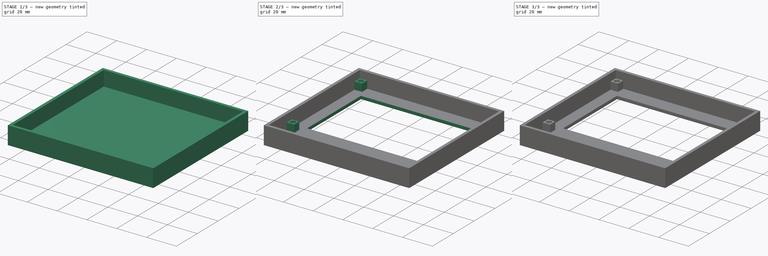
[diagram: build sequence overview — one tinted view per stage of 3, left to right]
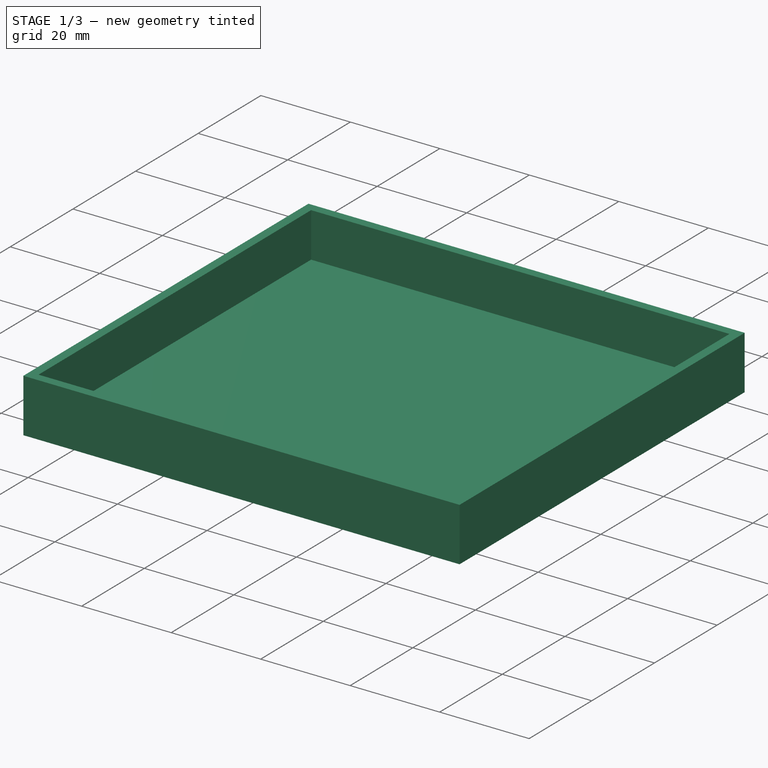
[diagram: stage 1 of 3 — iso view after this stage's code; geometry added in this stage tinted green]
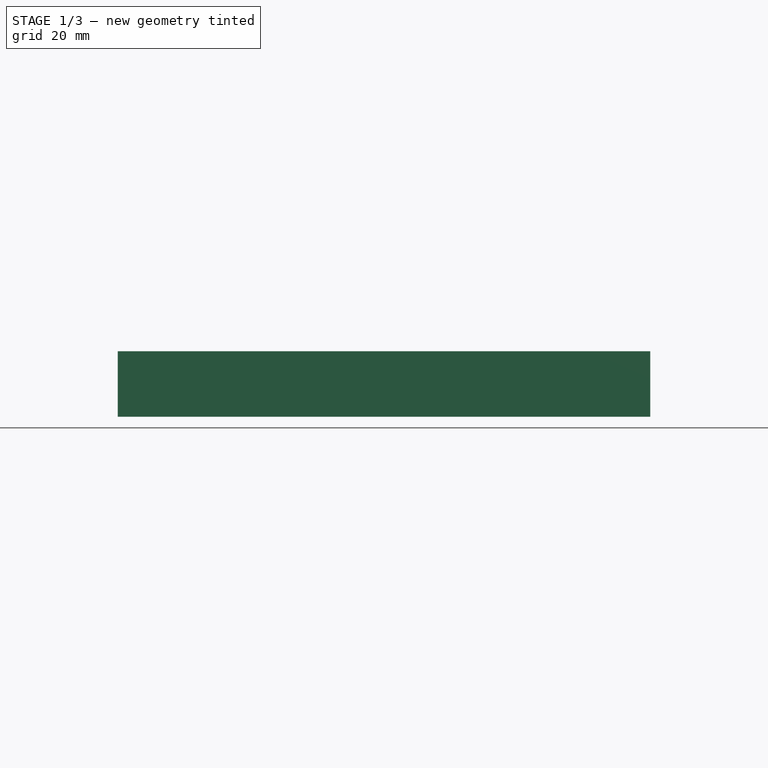
[diagram: stage 1 of 3 — front view after this stage's code; geometry added in this stage tinted green]
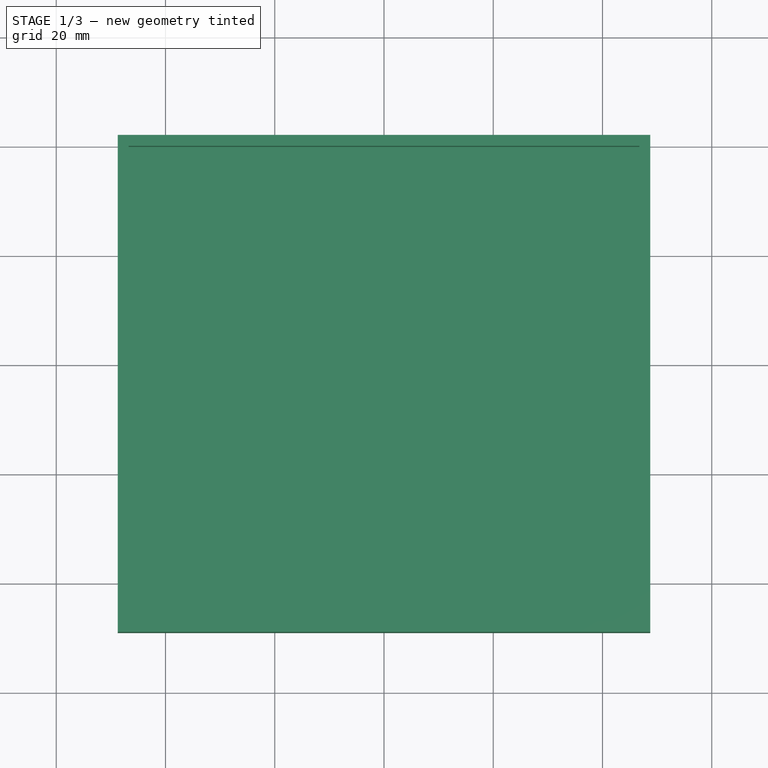
[diagram: stage 1 of 3 — top view after this stage's code; geometry added in this stage tinted green]
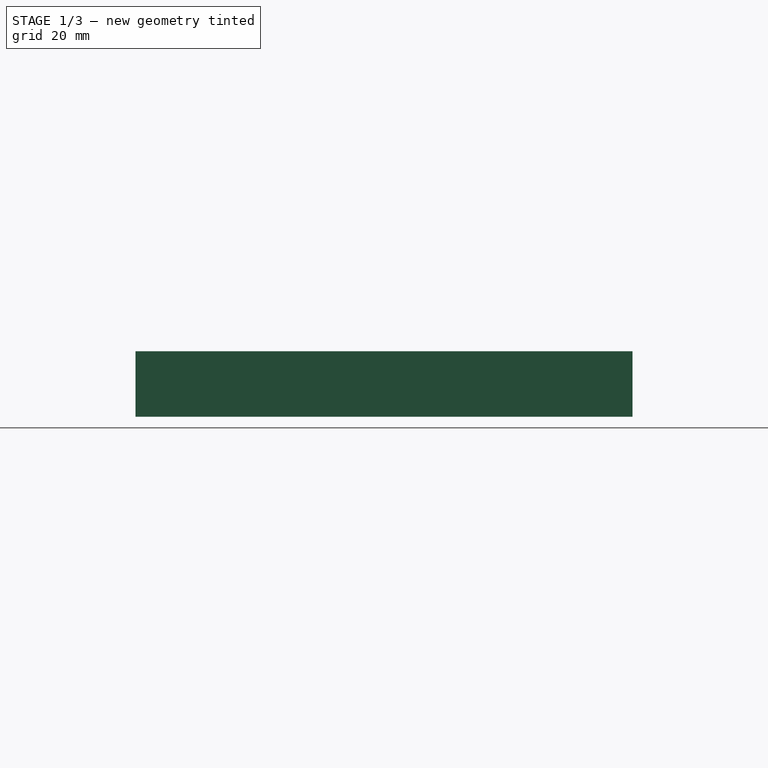
[diagram: stage 1 of 3 — right view after this stage's code; geometry added in this stage tinted green]
FCSTD DOCUMENT  (FreeCAD 0.18R14090 (Git))
Label: RRD_FGSC_Case2
License: All rights reserved
LicenseURL: http://en.wikipedia.org/wiki/All_rights_reserved
objects: Sketcher::SketchObject×6, PartDesign::Pocket×5, PartDesign::Pad×2, PartDesign::Body×1, App::Part×1
note: 21 computed .brp shape members not serialized (recipe doc carries the construction recipe); baked Part::Feature solids carry a one-line shape summary decoded from their .brp

FEATURE [Sketcher::SketchObject] Sketch  label="CaseInternalSketch"
  MapMode = 5
  Support = -> [XY_Plane001]
  sketch-geometry (4):
    g0: LineSegment StartX=-46.75 StartY=0 StartZ=0 EndX=46.75 EndY=0 EndZ=0
    g1: LineSegment StartX=-46.75 StartY=0 StartZ=0 EndX=-46.75 EndY=-87 EndZ=0
    g2: LineSegment StartX=46.75 StartY=0 StartZ=0 EndX=46.75 EndY=-87 EndZ=0
    g3: LineSegment StartX=-46.75 StartY=-87 StartZ=0 EndX=46.75 EndY=-87 EndZ=0
  constraints (11):
    c: PointOnObject(g0,g-1)
    c: Symmetric(g0,g0,g-2)
    c: Distance(g0) = 93.5
    c: Coincident(g1,g0)
    c: Vertical(g1)
    c: Coincident(g2,g0)
    c: Vertical(g2)
    c: Coincident(g3,g1)
    c: Coincident(g3,g2)
    c: Horizontal(g3)
    c: Distance(g2) = 87
FEATURE [Sketcher::SketchObject] Sketch001  label="CaseExternalSketch"
  MapMode = 5
  Support = -> [XY_Plane001]
  sketch-geometry (4):
    g0: LineSegment StartX=-48.75 StartY=2 StartZ=0 EndX=48.75 EndY=2 EndZ=0
    g1: LineSegment StartX=-48.75 StartY=2 StartZ=0 EndX=-48.75 EndY=-89 EndZ=0
    g2: LineSegment StartX=-48.75 StartY=-89 StartZ=0 EndX=48.75 EndY=-89 EndZ=0
    g3: LineSegment StartX=48.75 StartY=-89 StartZ=0 EndX=48.75 EndY=2 EndZ=0
  constraints (11):
    c: Symmetric(g0,g0,g-2)
    c: Distance(g0) = 97.5
    c: DistanceY(g-1,g0) = 2
    c: Coincident(g1,g0)
    c: Vertical(g1)
    c: Coincident(g2,g1)
    c: Horizontal(g2)
    c: Coincident(g3,g2)
    c: Coincident(g3,g0)
    c: Vertical(g3)
    c: Distance(g3) = 91
FEATURE [PartDesign::Pad] Pad  label="CaseExternalPad"
  Length = 12
  Length2 = 100
  Profile = -> Sketch001
  Reversed = true
  Type = 0
FEATURE [PartDesign::Pocket] Pocket  label="CaseInternalPocket"
  BaseFeature = -> Pad
  Length = 10
  Length2 = 100
  Profile = -> Sketch
  Type = 0
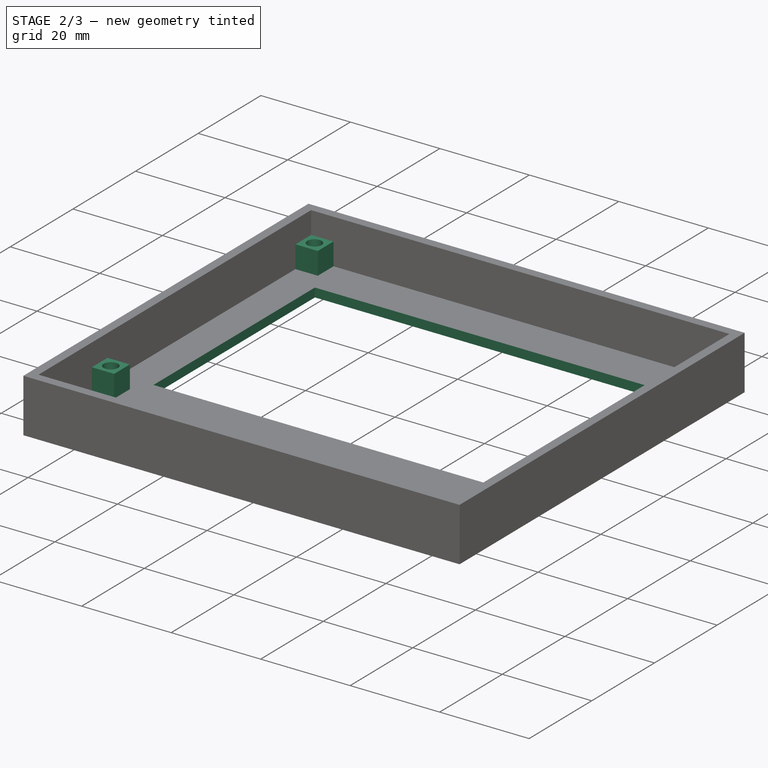
[diagram: stage 2 of 3 — iso view after this stage's code; geometry added in this stage tinted green]
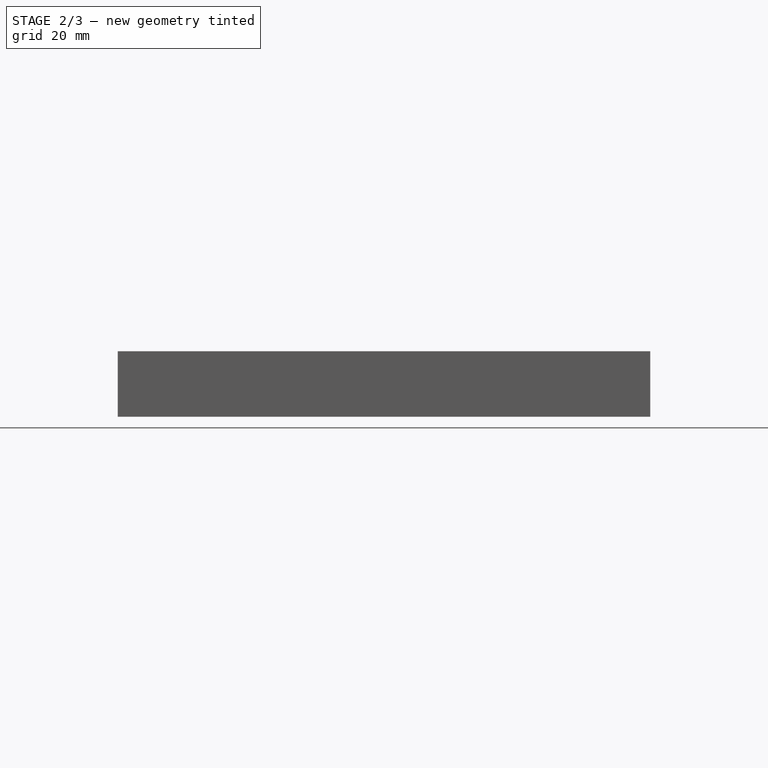
[diagram: stage 2 of 3 — front view after this stage's code; geometry added in this stage tinted green]
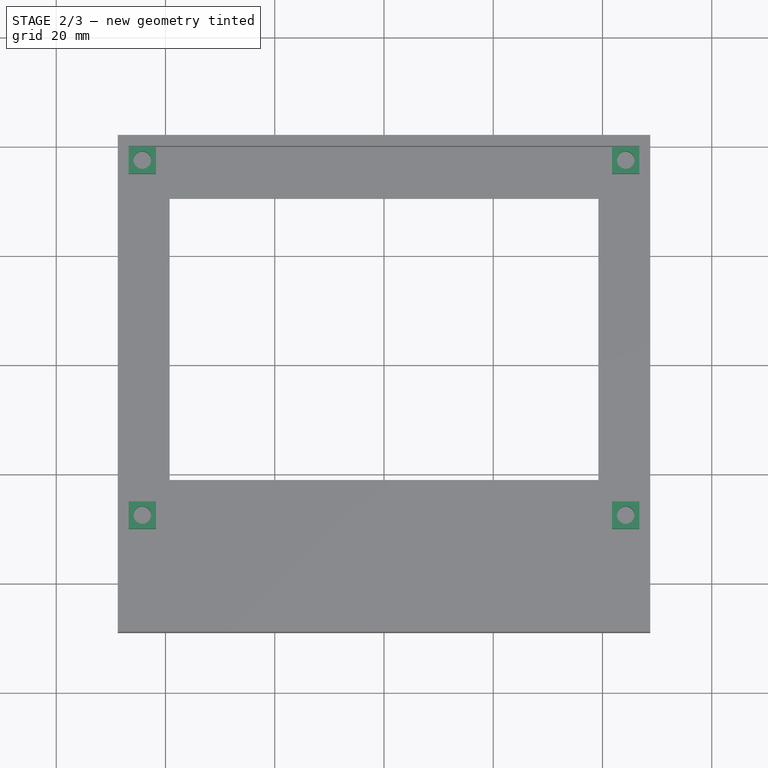
[diagram: stage 2 of 3 — top view after this stage's code; geometry added in this stage tinted green]
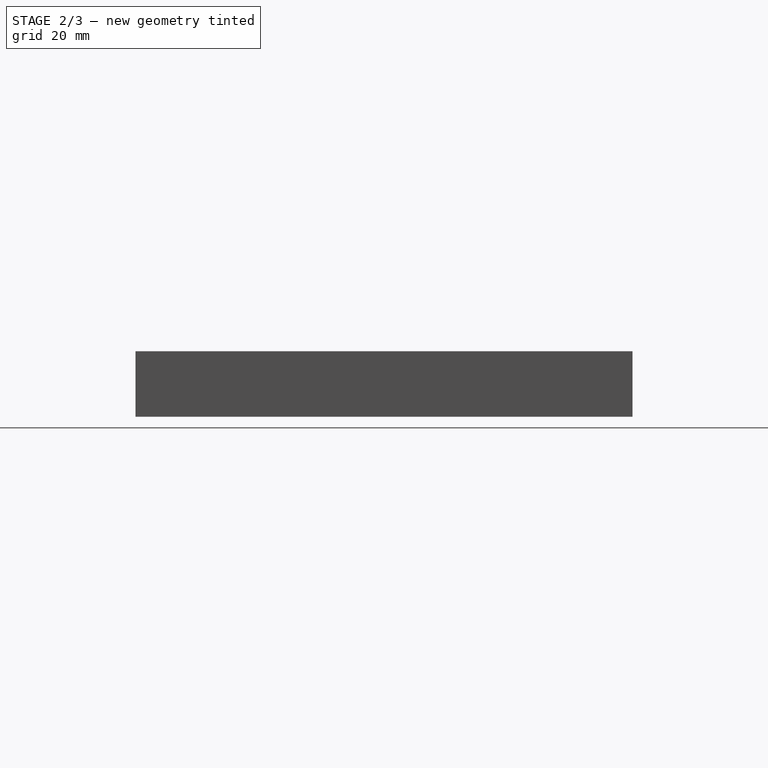
[diagram: stage 2 of 3 — right view after this stage's code; geometry added in this stage tinted green]
FEATURE [Sketcher::SketchObject] Sketch002  label="CaseScrewsSketch"
  ExternalGeometry = -> [Sketch]
  MapMode = 5
  Support = -> [XY_Plane001]
  sketch-geometry (27):
    g0: Circle CenterX=-44.25 CenterY=-2.5 CenterZ=0 NormalX=0 NormalY=0 NormalZ=1 AngleXU=0 Radius=1.6
    g1: Circle CenterX=44.25 CenterY=-2.5 CenterZ=0 NormalX=0 NormalY=0 NormalZ=1 AngleXU=0 Radius=1.6
    g2: Circle CenterX=-44.25 CenterY=-67.5 CenterZ=0 NormalX=0 NormalY=0 NormalZ=1 AngleXU=0 Radius=1.6
    g3: Circle CenterX=44.25 CenterY=-67.5 CenterZ=0 NormalX=0 NormalY=0 NormalZ=1 AngleXU=0 Radius=1.6
    g4: LineSegment [constr] StartX=-44.25 StartY=-2.5 StartZ=0 EndX=-46.75 EndY=-2.5 EndZ=0
    g5: LineSegment [constr] StartX=-44.25 StartY=-2.5 StartZ=0 EndX=-44.25 EndY=0 EndZ=0
    g6: LineSegment [constr] StartX=-44.25 StartY=-2.5 StartZ=0 EndX=-44.25 EndY=-67.5 EndZ=0
    g7: LineSegment StartX=-46.75 StartY=0 StartZ=0 EndX=-46.75 EndY=-5 EndZ=0
    g8: LineSegment StartX=-46.75 StartY=-5 StartZ=0 EndX=-41.75 EndY=-5 EndZ=0
    g9: LineSegment StartX=-41.75 StartY=-5 StartZ=0 EndX=-41.75 EndY=0 EndZ=0
    g10: LineSegment StartX=-41.75 StartY=0 StartZ=0 EndX=-46.75 EndY=0 EndZ=0
    g11: Circle [constr] CenterX=-44.25 CenterY=-2.5 CenterZ=0 NormalX=0 NormalY=0 NormalZ=1 AngleXU=0 Radius=3.53553
    g12: LineSegment StartX=-46.75 StartY=-65 StartZ=0 EndX=-46.75 EndY=-70 EndZ=0
    g13: LineSegment StartX=-46.75 StartY=-70 StartZ=0 EndX=-41.75 EndY=-70 EndZ=0
    g14: LineSegment StartX=-41.75 StartY=-70 StartZ=0 EndX=-41.75 EndY=-65 EndZ=0
    g15: LineSegment StartX=-41.75 StartY=-65 StartZ=0 EndX=-46.75 EndY=-65 EndZ=0
    g16: Circle [constr] CenterX=-44.25 CenterY=-67.5 CenterZ=0 NormalX=0 NormalY=0 NormalZ=1 AngleXU=0 Radius=3.53553
    g17: LineSegment StartX=41.75 StartY=-65 StartZ=0 EndX=41.75 EndY=-70 EndZ=0
    g18: LineSegment StartX=41.75 StartY=-70 StartZ=0 EndX=46.75 EndY=-70 EndZ=0
    g19: LineSegment StartX=46.75 StartY=-70 StartZ=0 EndX=46.75 EndY=-65 EndZ=0
    g20: LineSegment StartX=46.75 StartY=-65 StartZ=0 EndX=41.75 EndY=-65 EndZ=0
    g21: Circle [constr] CenterX=44.25 CenterY=-67.5 CenterZ=0 NormalX=0 NormalY=0 NormalZ=1 AngleXU=0 Radius=3.53553
    g22: LineSegment StartX=41.75 StartY=-5 StartZ=0 EndX=46.75 EndY=-5 EndZ=0
    g23: LineSegment StartX=46.75 StartY=-5 StartZ=0 EndX=46.75 EndY=0 EndZ=0
    g24: LineSegment StartX=46.75 StartY=0 StartZ=0 EndX=41.75 EndY=0 EndZ=0
    g25: LineSegment StartX=41.75 StartY=0 StartZ=0 EndX=41.75 EndY=-5 EndZ=0
    g26: Circle [constr] CenterX=44.25 CenterY=-2.5 CenterZ=0 NormalX=0 NormalY=0 NormalZ=1 AngleXU=0 Radius=3.53553
  constraints (73):
    c: Equal(g0,g1)
    c: Equal(g1,g3)
    c: Equal(g3,g2)
    c: Radius(g0) = 1.6
    c: Symmetric(g0,g1,g-2)
    c: Symmetric(g3,g2,g-2)
    c: Coincident(g4,g0)
    c: PointOnObject(g4,g-3)
    c: Horizontal(g4)
    c: Distance(g4) = 2.5
    c: Coincident(g5,g0)
    c: PointOnObject(g5,g-1)
    c: Vertical(g5)
    c: Coincident(g6,g0)
    c: Coincident(g6,g2)
    c: Vertical(g6)
    c: Distance(g6) = 65
    c: Equal(g5,g4)
    c: Coincident(g7,g8)
    c: Coincident(g8,g9)
    c: Coincident(g9,g10)
    c: Coincident(g10,g7)
    c: Equal(g7,g8)
    c: Equal(g7,g9)
    c: Equal(g7,g10)
    c: PointOnObject(g7,g11)
    c: PointOnObject(g8,g11)
    c: PointOnObject(g9,g11)
    c: PointOnObject(g10,g11)
    c: Coincident(g11,g0)
    c: Coincident(g10,g-3)
    c: Coincident(g12,g13)
    c: Coincident(g13,g14)
    c: Coincident(g14,g15)
    c: Coincident(g15,g12)
    c: Equal(g12,g13)
    c: Equal(g12,g14)
    c: Equal(g12,g15)
    c: PointOnObject(g12,g16)
    c: PointOnObject(g13,g16)
    c: PointOnObject(g14,g16)
    c: PointOnObject(g15,g16)
    c: Coincident(g16,g2)
    c: Coincident(g17,g18)
    c: Coincident(g18,g19)
    c: Coincident(g19,g20)
    c: Coincident(g20,g17)
    c: Equal(g17,g18)
    c: Equal(g17,g19)
    c: Equal(g17,g20)
    c: PointOnObject(g17,g21)
    c: PointOnObject(g18,g21)
    c: PointOnObject(g19,g21)
    c: PointOnObject(g20,g21)
    c: Coincident(g21,g3)
    c: Coincident(g22,g23)
    c: Coincident(g23,g24)
    c: Coincident(g24,g25)
    c: Coincident(g25,g22)
    c: Equal(g22,g23)
    c: Equal(g22,g24)
    c: Equal(g22,g25)
    c: PointOnObject(g22,g26)
    c: PointOnObject(g23,g26)
    c: PointOnObject(g24,g26)
    c: PointOnObject(g25,g26)
    c: Coincident(g26,g1)
    c: Equal(g24,g20)
    c: Equal(g20,g15)
    c: Equal(g24,g10)
    c: Horizontal(g24)
    c: Horizontal(g20)
    c: Horizontal(g15)
FEATURE [PartDesign::Pad] Pad001  label="CaseScrewsPad"
  BaseFeature = -> Pocket
  Length = 10
  Length2 = 100
  Profile = -> Sketch002
  Reversed = true
  Type = 2
FEATURE [PartDesign::Pocket] Pocket001  label="CaseClipPocket"
  BaseFeature = -> Pad001
  Length = 5
  Length2 = 100
  Profile = -> Sketch
  Type = 0
FEATURE [Sketcher::SketchObject] Sketch003  label="CaseScreenCutSketch"
  MapMode = 5
  Support = -> [XY_Plane001]
  sketch-geometry (4):
    g0: LineSegment StartX=-39.25 StartY=-9.5 StartZ=0 EndX=39.25 EndY=-9.5 EndZ=0
    g1: LineSegment StartX=39.25 StartY=-9.5 StartZ=0 EndX=39.25 EndY=-61 EndZ=0
    g2: LineSegment StartX=39.25 StartY=-61 StartZ=0 EndX=-39.25 EndY=-61 EndZ=0
    g3: LineSegment StartX=-39.25 StartY=-61 StartZ=0 EndX=-39.25 EndY=-9.5 EndZ=0
  constraints (11):
    c: Coincident(g0,g1)
    c: Coincident(g1,g2)
    c: Coincident(g2,g3)
    c: Coincident(g3,g0)
    c: Horizontal(g2)
    c: Vertical(g1)
    c: Vertical(g3)
    c: Symmetric(g0,g0,g-2)
    c: Distance(g0) = 78.5
    c: Distance(g3) = 51.5
    c: DistanceY(g-1,g0) = -9.5
FEATURE [PartDesign::Pocket] Pocket002  label="CaseScreenCutPocket"
  BaseFeature = -> Pocket001
  Length = 5
  Length2 = 100
  Profile = -> Sketch003
  Type = 1
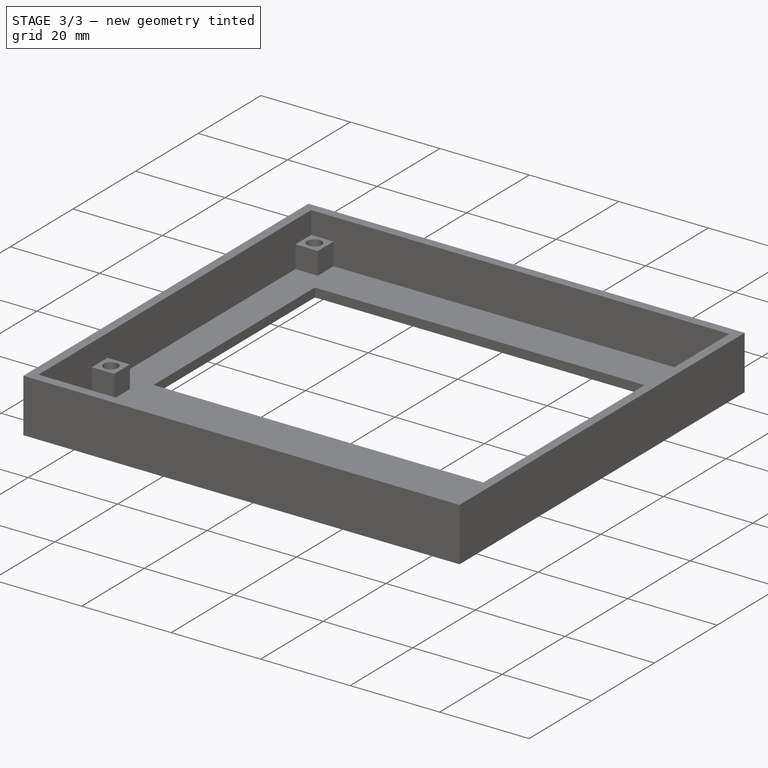
[diagram: stage 3 of 3 — iso view after this stage's code; geometry added in this stage tinted green]
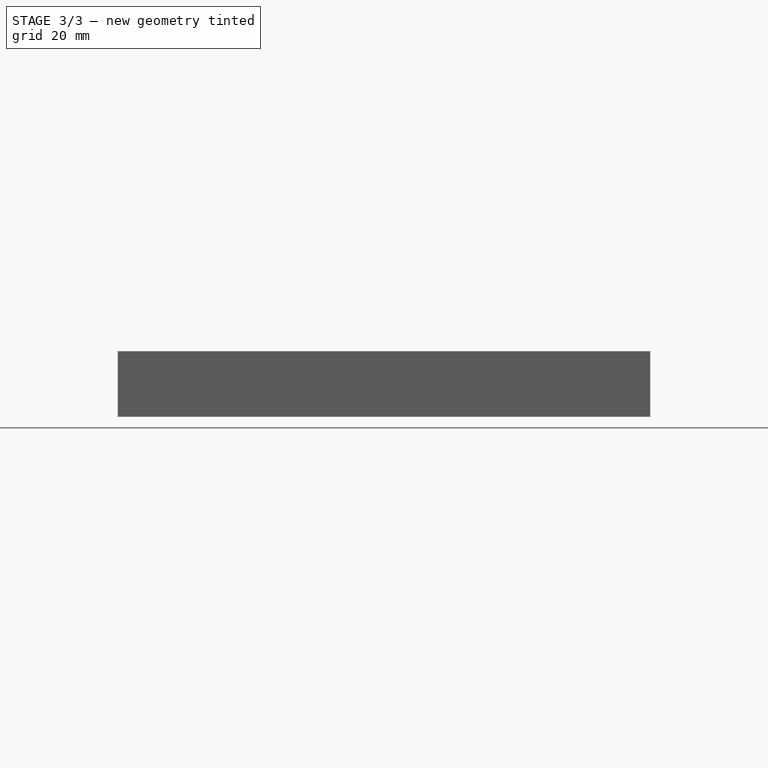
[diagram: stage 3 of 3 — front view after this stage's code; geometry added in this stage tinted green]
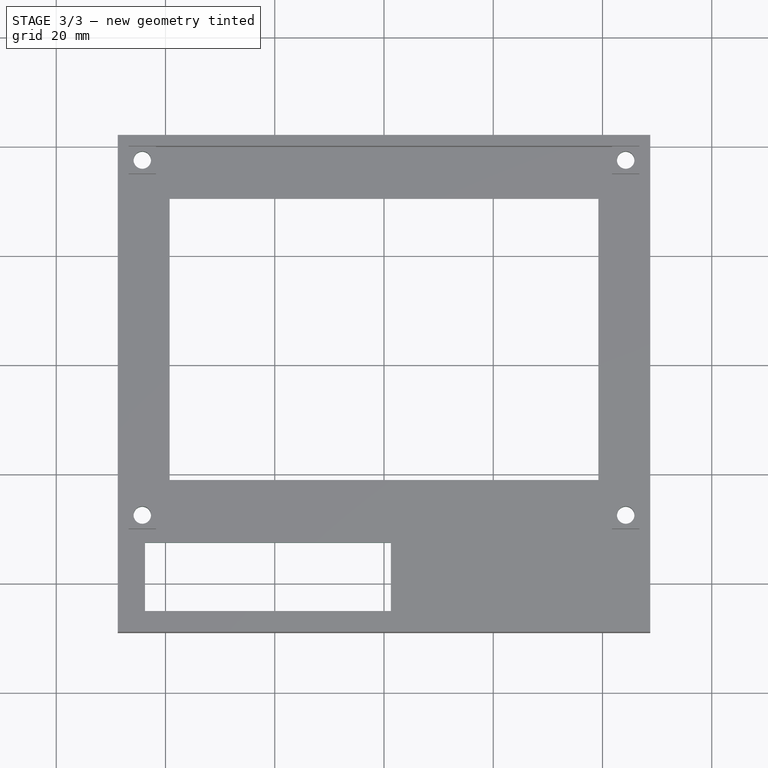
[diagram: stage 3 of 3 — top view after this stage's code; geometry added in this stage tinted green]
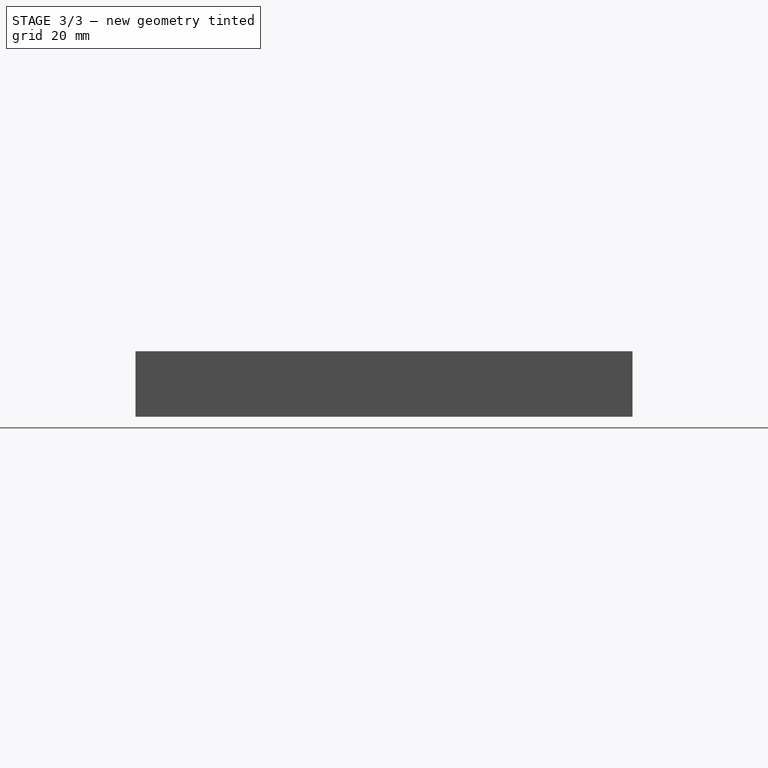
[diagram: stage 3 of 3 — right view after this stage's code; geometry added in this stage tinted green]
FEATURE [Sketcher::SketchObject] Sketch004  label="CaseControlCutSketch"
  ExternalGeometry = -> [Sketch]
  MapMode = 5
  Support = -> [XY_Plane001]
  sketch-geometry (4):
    g0: LineSegment StartX=-43.75 StartY=-72.5 StartZ=0 EndX=1.25 EndY=-72.5 EndZ=0
    g1: LineSegment StartX=1.25 StartY=-72.5 StartZ=0 EndX=1.25 EndY=-85 EndZ=0
    g2: LineSegment StartX=1.25 StartY=-85 StartZ=0 EndX=-43.75 EndY=-85 EndZ=0
    g3: LineSegment StartX=-43.75 StartY=-85 StartZ=0 EndX=-43.75 EndY=-72.5 EndZ=0
  constraints (12):
    c: Coincident(g0,g1)
    c: Coincident(g1,g2)
    c: Coincident(g2,g3)
    c: Coincident(g3,g0)
    c: Horizontal(g0)
    c: Horizontal(g2)
    c: Vertical(g1)
    c: Vertical(g3)
    c: Distance(g2,g-3) = 3
    c: Distance(g2,g-4) = 2
    c: Distance(g3) = 12.5
    c: Distance(g0) = 45
FEATURE [PartDesign::Pocket] Pocket003  label="CaseControlCutPocket"
  BaseFeature = -> Pocket002
  Length = 5
  Length2 = 100
  Profile = -> Sketch004
  Type = 1
FEATURE [Sketcher::SketchObject] Sketch005  label="CaseScrewsSketch_2"
  ExternalGeometry = -> [Sketch002]
  MapMode = 5
  Support = -> [XY_Plane001]
  sketch-geometry (4):
    g0: Circle CenterX=-44.25 CenterY=-2.5 CenterZ=0 NormalX=0 NormalY=0 NormalZ=1 AngleXU=0 Radius=1.6
    g1: Circle CenterX=44.25 CenterY=-2.5 CenterZ=0 NormalX=0 NormalY=0 NormalZ=1 AngleXU=0 Radius=1.6
    g2: Circle CenterX=44.25 CenterY=-67.5 CenterZ=0 NormalX=0 NormalY=0 NormalZ=1 AngleXU=0 Radius=1.6
    g3: Circle CenterX=-44.25 CenterY=-67.5 CenterZ=0 NormalX=0 NormalY=0 NormalZ=1 AngleXU=0 Radius=1.6
  constraints (8):
    c: Coincident(g0,g-3)
    c: Coincident(g1,g-4)
    c: Coincident(g2,g-5)
    c: Coincident(g3,g-6)
    c: Equal(g3,g-6)
    c: Equal(g0,g-3)
    c: Equal(g1,g-4)
    c: Equal(g2,g-5)
FEATURE [PartDesign::Pocket] Pocket004  label="CaseScrewsPocket_2"
  BaseFeature = -> Pocket003
  Length = 5
  Length2 = 100
  Profile = -> Sketch005
  Type = 1
FEATURE [PartDesign::Body] Body  label="CaseBody"
  Group = -> [Sketch,Sketch001,Pad,Pocket,Sketch002,Pad001,Pocket001,Sketch003,Pocket002,Sketch004,Pocket003,Sketch005,Pocket004]
  Origin = -> Origin001
  Tip = -> Pocket004
FEATURE [App::Part] Part  label="CasePart"
  Group = -> [Body]
  License = CC BY 3.0
  LicenseURL = http://creativecommons.org/licenses/by/3.0/
  Origin = -> Origin
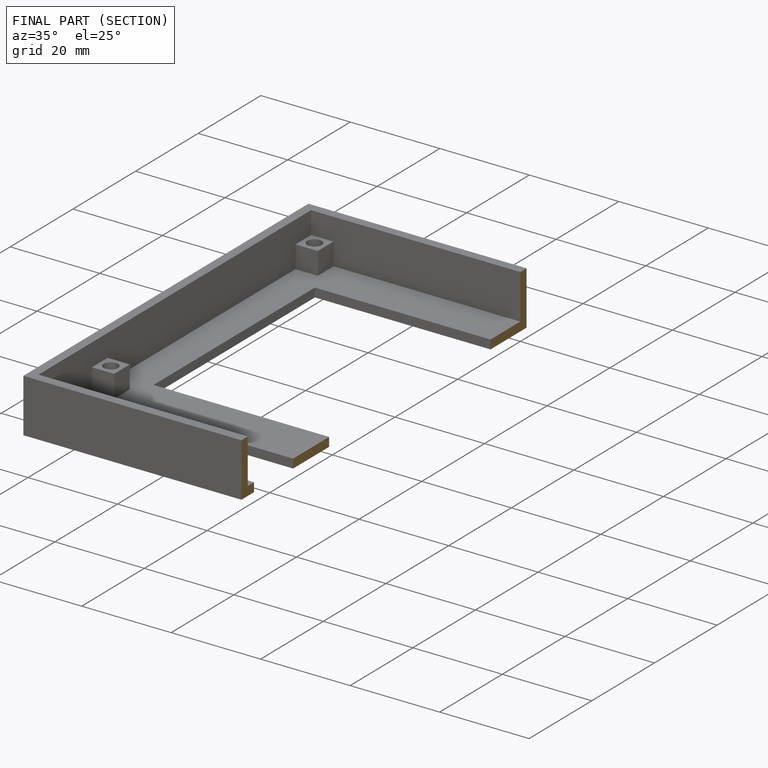
[diagram: finished part — half-section view (interior)]
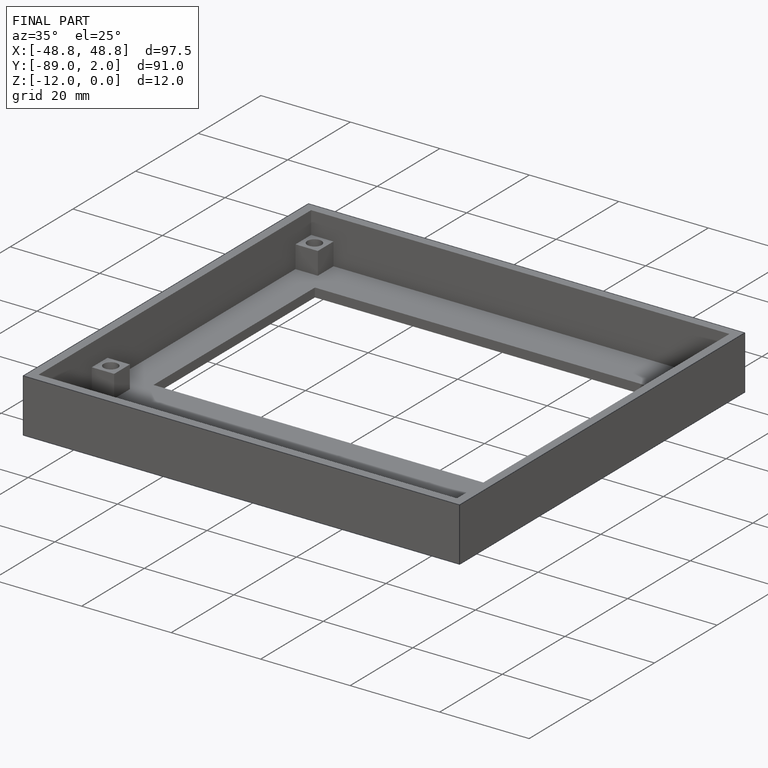
[diagram: finished part — iso view with bounding-box wireframe]
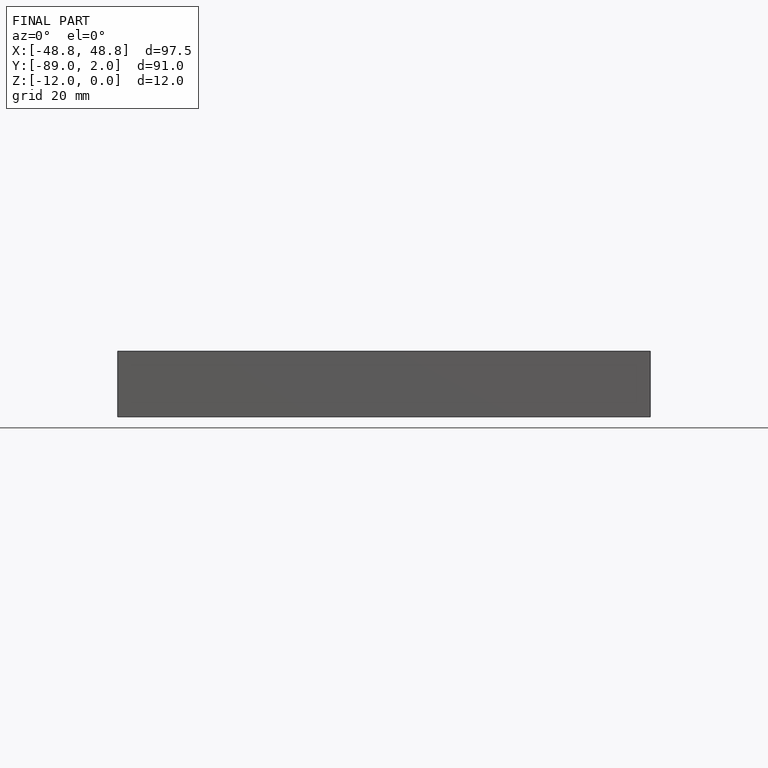
[diagram: finished part — front view with bounding-box wireframe]
